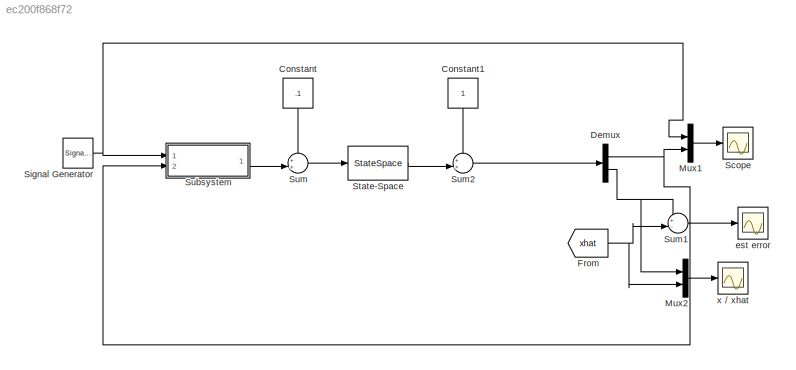
MODEL slx_ec200f868f72
KIND model
CONFIG AbsTol = auto
CONFIG FixedStep = auto
CONFIG InitFcn = param
CONFIG MaxStep = auto
CONFIG MinStep = auto
CONFIG RelTol = 1e-3
CONFIG SampleTimeConstraint = Unconstrained
CONFIG Solver = ode45
CONFIG SolverMode = Auto
CONFIG SolverName = ode45
CONFIG StartTime = 0.0
CONFIG StopTime = 120
BLOCK [Constant] Constant
  Value = .1
BLOCK [Constant] Constant1
BLOCK [Demux] Demux
  DisplayOption = bar
  Outputs = [1;2]
  Ports = [1, 2]
BLOCK [From] From
  GotoTag = xhat
  TagVisibility = global
BLOCK [Mux] Mux1
  DisplayOption = bar
  Inputs = 2
  Ports = [2, 1]
BLOCK [Mux] Mux2
  DisplayOption = bar
  Inputs = 2
  Ports = [2, 1]
BLOCK [Scope] Scope
  Floating = off
  LimitDataPoints = off
  NumInputPorts = 1
  Ports = [1]
  TimeRange = 120
  YMax = 6
  YMin = -2
BLOCK [SignalGenerator] Signal Generator
  Frequency = .1
  Ports = [0, 1]
  Units = rad/sec
  WaveForm = square
BLOCK [StateSpace] State-Space
  A = P.A
  B = P.B
  C = [P.C; eye(2)]
  D = [0;0;0]
  Ports = [1, 1]
  X0 = [0;0]
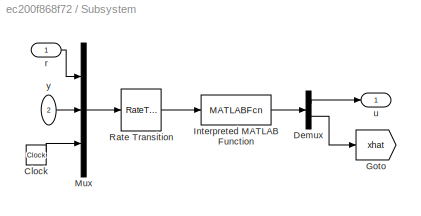
BLOCK [SubSystem] Subsystem
  Ports = [2, 1]
  RequestExecContextInheritance = off
BLOCK [Clock] Subsystem/Clock
BLOCK [Demux] Subsystem/Demux
  DisplayOption = bar
  Outputs = [1;2]
  Ports = [1, 2]
BLOCK [Goto] Subsystem/Goto
  GotoTag = xhat
  TagVisibility = global
BLOCK [MATLABFcn] Subsystem/Interpreted MATLAB Function
  MATLABFcn = ctrl(u,P)
  OutputDimensions = 1+2
  Ports = [1, 1]
BLOCK [Mux] Subsystem/Mux
  DisplayOption = bar
  Inputs = 3
  Ports = [3, 1]
BLOCK [RateTransition] Subsystem/Rate Transition
  OutPortSampleTime = P.Ts
BLOCK [Inport] Subsystem/r
  IconDisplay = Port number
BLOCK [Outport] Subsystem/u
  IconDisplay = Port number
BLOCK [Inport] Subsystem/y
  IconDisplay = Port number
  Port = 2
BLOCK [Sum] Sum
  IconShape = round
  InputSameDT = off
  Inputs = ++|
  OutDataTypeStr = Inherit: Inherit via internal rule
  Ports = [2, 1]
  SaturateOnIntegerOverflow = off
BLOCK [Sum] Sum1
  IconShape = round
  InputSameDT = off
  Inputs = +-|
  OutDataTypeStr = Inherit: Inherit via internal rule
  Ports = [2, 1]
  SaturateOnIntegerOverflow = off
BLOCK [Sum] Sum2
  IconShape = round
  InputSameDT = off
  Inputs = ++|
  OutDataTypeStr = Inherit: Inherit via internal rule
  Ports = [2, 1]
  SaturateOnIntegerOverflow = off
BLOCK [Scope] est error 
  Floating = off
  LimitDataPoints = off
  NumInputPorts = 1
  Ports = [1]
  SaveName = ScopeData1
  TimeRange = 120
  YMax = 3
  YMin = -3
BLOCK [Scope] x // xhat
  Floating = off
  LimitDataPoints = off
  NumInputPorts = 1
  Ports = [1]
  SaveName = ScopeData2
  TimeRange = 120
  YMax = 3
  YMin = -3
LINE Constant1:1 -> Sum2:1
LINE Constant:1 -> Sum:1
NET Demux:1 -> Mux1:2, Subsystem:2
NET Demux:2 -> Mux2:1, Sum1:1
NET From:1 -> Mux2:2, Sum1:2
LINE Mux1:1 -> Scope:1
LINE Mux2:1 -> x // xhat:1
NET Signal Generator:1 -> Mux1:1, Subsystem:1
LINE State-Space:1 -> Sum2:2
LINE Subsystem/Clock:1 -> Subsystem/Mux:3
LINE Subsystem/Demux:1 -> Subsystem/u:1
LINE Subsystem/Demux:2 -> Subsystem/Goto:1
LINE Subsystem/Interpreted MATLAB Function:1 -> Subsystem/Demux:1
LINE Subsystem/Mux:1 -> Subsystem/Rate Transition:1
LINE Subsystem/Rate Transition:1 -> Subsystem/Interpreted MATLAB Function:1
LINE Subsystem/r:1 -> Subsystem/Mux:1
LINE Subsystem/y:1 -> Subsystem/Mux:2
LINE Subsystem:1 -> Sum:2
LINE Sum1:1 -> est error :1
LINE Sum2:1 -> Demux:1
LINE Sum:1 -> State-Space:1
note: NET lines group one-source signal fan-out (src -> all destinations, sorted); 1:1 wires keep LINE
